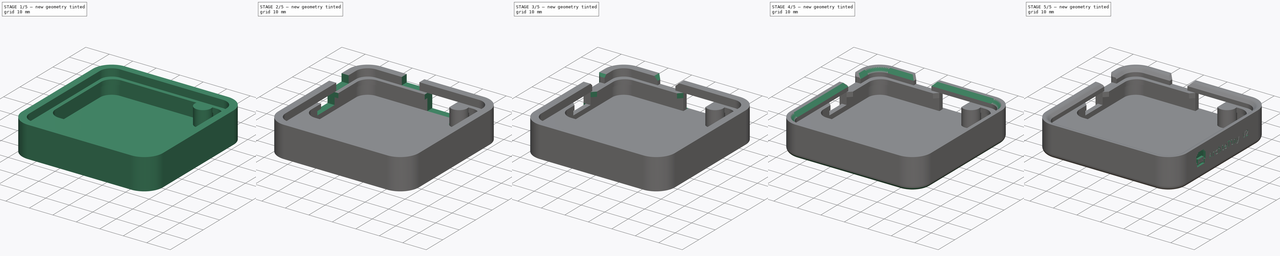
[diagram: build sequence overview — one tinted view per stage of 5, left to right]
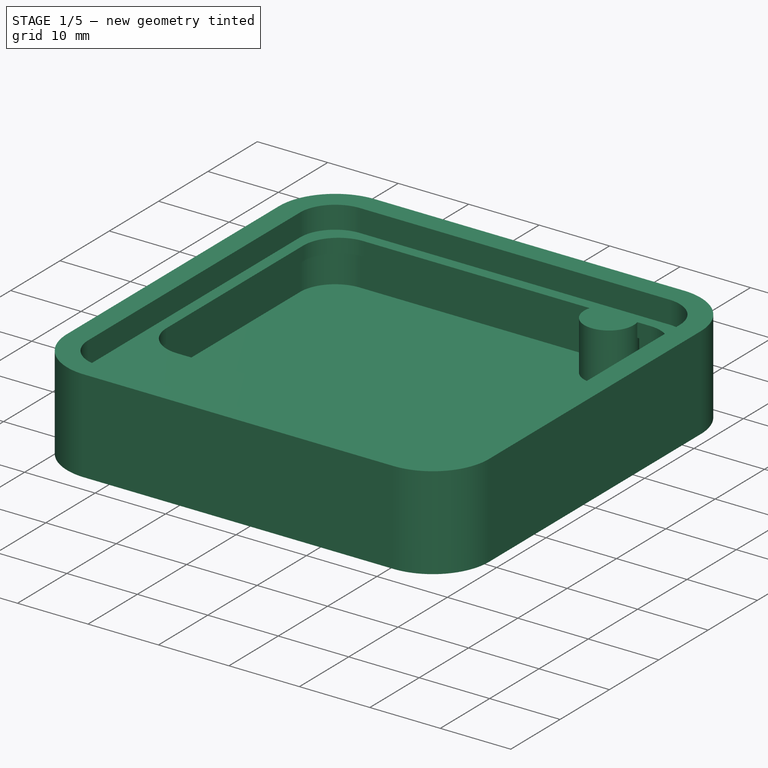
[diagram: stage 1 of 5 — iso view after this stage's code; geometry added in this stage tinted green]
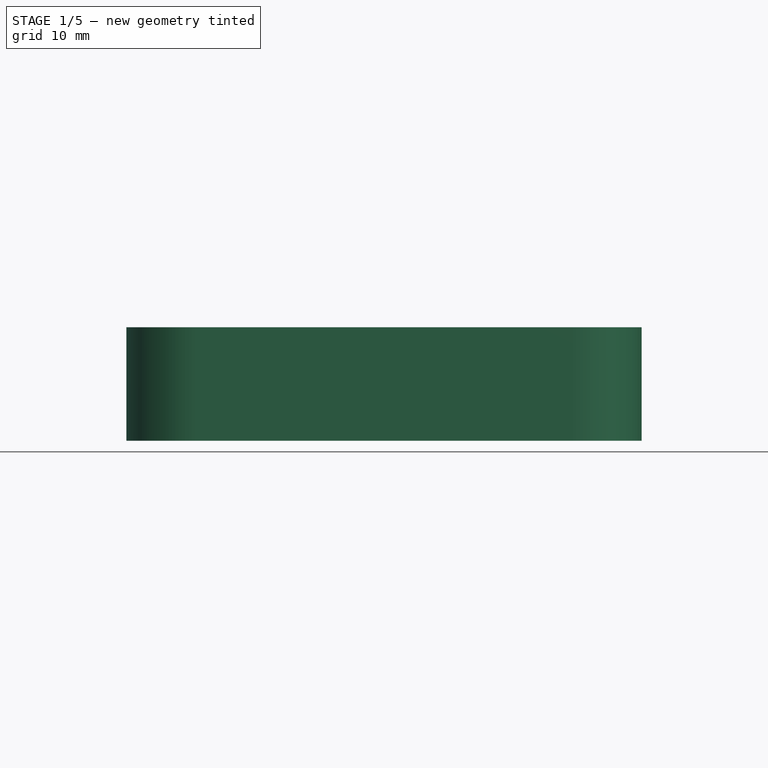
[diagram: stage 1 of 5 — front view after this stage's code; geometry added in this stage tinted green]
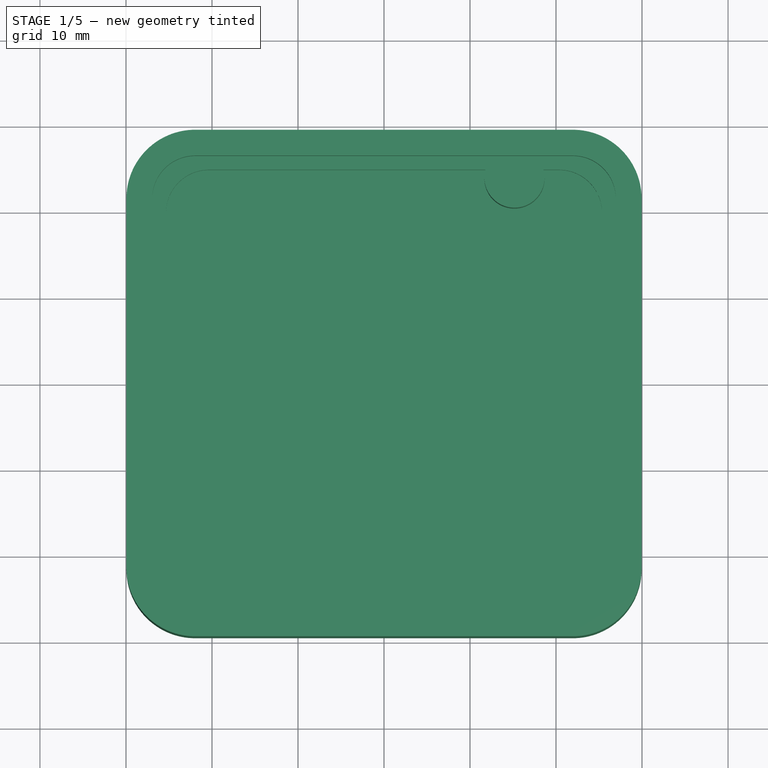
[diagram: stage 1 of 5 — top view after this stage's code; geometry added in this stage tinted green]
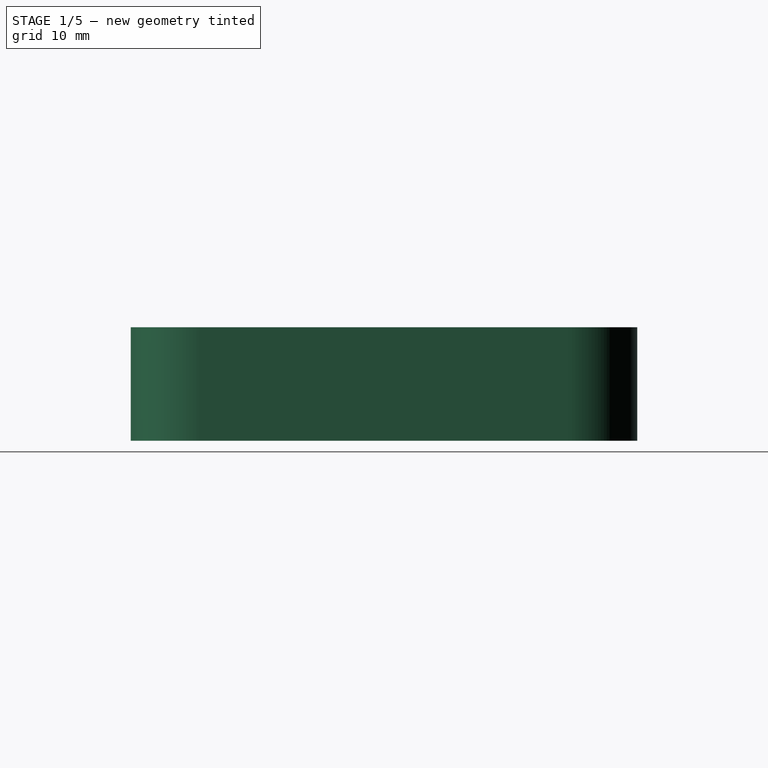
[diagram: stage 1 of 5 — right view after this stage's code; geometry added in this stage tinted green]
FCSTD DOCUMENT  (FreeCAD 0.20R29410 (Git))
Label: ArchieTiny_Case
License: All rights reserved
LicenseURL: http://en.wikipedia.org/wiki/All_rights_reserved
objects: Sketcher::SketchObject×12, PartDesign::Pocket×11, PartDesign::Chamfer×6, PartDesign::Fillet×6, PartDesign::Pad×2, Spreadsheet::Sheet×1, Part::Part2DObjectPython×1, PartDesign::Body×1
note: 64 computed .brp shape members not serialized (recipe doc carries the construction recipe); baked Part::Feature solids carry a one-line shape summary decoded from their .brp

FEATURE [Sketcher::SketchObject] Sketch  label="pcb_shape"
  FullyConstrained = true
  MapMode = 5
  Support = -> [XY_Plane]
  expr: .AttachmentOffset.Base.y = 0
  expr: .AttachmentOffset.Base.z = 0
  expr: Constraints[15] = Spreadsheet.board_straight_width
  expr: Constraints[16] = Spreadsheet.board_straight_height
  expr: Constraints[17] = Spreadsheet.board_corner_radius
  sketch-geometry (8):
    g0: LineSegment StartX=-21.95 StartY=26.45 StartZ=0 EndX=21.95 EndY=26.45 EndZ=0
    g1: LineSegment StartX=26.95 StartY=21.45 StartZ=0 EndX=26.95 EndY=-21.45 EndZ=0
    g2: LineSegment StartX=21.95 StartY=-26.45 StartZ=0 EndX=-21.95 EndY=-26.45 EndZ=0
    g3: LineSegment StartX=-26.95 StartY=-21.45 StartZ=0 EndX=-26.95 EndY=21.45 EndZ=0
    g4: ArcOfCircle CenterX=-21.95 CenterY=21.45 CenterZ=0 NormalX=0 NormalY=0 NormalZ=1 AngleXU=0 Radius=5 StartAngle=1.5708 EndAngle=3.14159
    g5: ArcOfCircle CenterX=21.95 CenterY=21.45 CenterZ=0 NormalX=0 NormalY=0 NormalZ=1 AngleXU=0 Radius=5 StartAngle=-5.4206e-12 EndAngle=1.5708
    g6: ArcOfCircle CenterX=21.95 CenterY=-21.45 CenterZ=0 NormalX=0 NormalY=0 NormalZ=1 AngleXU=0 Radius=5 StartAngle=4.71239 EndAngle=6.28319
    g7: ArcOfCircle CenterX=-21.95 CenterY=-21.45 CenterZ=0 NormalX=0 NormalY=0 NormalZ=1 AngleXU=0 Radius=5 StartAngle=3.14159 EndAngle=4.71239
  constraints (19):
    c: Horizontal(g0)
    c: Horizontal(g2)
    c: Vertical(g1)
    c: Vertical(g3)
    c: Tangent(g3,g4) = 1.5708
    c: Tangent(g0,g4) = 1.5708
    c: Tangent(g0,g5) = 1.5708
    c: Tangent(g1,g5) = 1.5708
    c: Tangent(g1,g6) = 1.5708
    c: Tangent(g2,g6) = 1.5708
    c: Tangent(g3,g7) = 1.5708
    c: Tangent(g2,g7) = 1.5708
    c: Equal(g4,g5)
    c: Equal(g5,g6)
    c: Equal(g6,g7)
    c: DistanceX(g0,g0) = 43.9
    c: DistanceY(g1,g1) = 42.9
    c: Radius(g5) = 5
    c: Symmetric(g4,g6,g-1)
FEATURE [Sketcher::SketchObject] Sketch001
  FullyConstrained = true
  MapMode = 5
  Support = -> [XY_Plane]
  expr: Constraints[15] = Spreadsheet.board_straight_width
  expr: Constraints[16] = Spreadsheet.board_straight_height
  expr: Constraints[17] = Spreadsheet.case_outer_corner_radius
  sketch-geometry (8):
    g0: LineSegment StartX=-21.95 StartY=29.45 StartZ=0 EndX=21.95 EndY=29.45 EndZ=0
    g1: LineSegment StartX=29.95 StartY=21.45 StartZ=0 EndX=29.95 EndY=-21.45 EndZ=0
    g2: LineSegment StartX=21.95 StartY=-29.45 StartZ=0 EndX=-21.95 EndY=-29.45 EndZ=0
    g3: LineSegment StartX=-29.95 StartY=-21.45 StartZ=0 EndX=-29.95 EndY=21.45 EndZ=0
    g4: ArcOfCircle CenterX=-21.95 CenterY=21.45 CenterZ=0 NormalX=0 NormalY=0 NormalZ=1 AngleXU=0 Radius=8 StartAngle=1.5708 EndAngle=3.14159
    g5: ArcOfCircle CenterX=21.95 CenterY=21.45 CenterZ=0 NormalX=0 NormalY=0 NormalZ=1 AngleXU=0 Radius=8 StartAngle=0 EndAngle=1.5708
    g6: ArcOfCircle CenterX=21.95 CenterY=-21.45 CenterZ=0 NormalX=0 NormalY=0 NormalZ=1 AngleXU=0 Radius=8 StartAngle=4.71239 EndAngle=6.28319
    g7: ArcOfCircle CenterX=-21.95 CenterY=-21.45 CenterZ=0 NormalX=0 NormalY=0 NormalZ=1 AngleXU=0 Radius=8 StartAngle=3.14159 EndAngle=4.71239
  constraints (19):
    c: Horizontal(g0)
    c: Horizontal(g2)
    c: Vertical(g1)
    c: Vertical(g3)
    c: Tangent(g3,g4) = 1.5708
    c: Tangent(g0,g4) = 1.5708
    c: Tangent(g0,g5) = 1.5708
    c: Tangent(g1,g5) = 1.5708
    c: Tangent(g1,g6) = 1.5708
    c: Tangent(g2,g6) = 1.5708
    c: Tangent(g3,g7) = 1.5708
    c: Tangent(g2,g7) = 1.5708
    c: Equal(g4,g5)
    c: Equal(g5,g6)
    c: Equal(g6,g7)
    c: DistanceX(g0,g0) = 43.9
    c: DistanceY(g1,g1) = 42.9
    c: Radius(g5) = 8
    c: Symmetric(g4,g6,g-1)
FEATURE [PartDesign::Pad] Pad
  Direction = (0,0,1)
  Length = 13.2
  Length2 = 10
  Profile = -> Sketch001
  ReferenceAxis = -> Sketch001 [N_Axis]
  Reversed = true
  Type = 0
  expr: Length = Spreadsheet.case_depth
FEATURE [PartDesign::Pocket] Pocket  label="Pocket-landing"
  BaseFeature = -> Pad
  Direction = (0,0,-1)
  Length = 3.2
  Length2 = 5
  Profile = -> Sketch
  ReferenceAxis = -> Sketch [N_Axis]
  Type = 0
  expr: Length = Spreadsheet.landing_depth
FEATURE [Spreadsheet::Sheet] Spreadsheet
  cells = A1=board_straight_width_actual; B1(board_straight_width_actual)=43.5; A2=board_straight_height_actual; B2(board_straight_height_actual)=42.5; A3=clearance_padding; B3(clearance_padding)=0.2; A4=board_straight_width; B4(board_straight_width)==B1 + B3 * 2; C4=calculated; A5=board_straight_height; B5(board_straight_height)==B2 + B3 * 2; C5=calculated; A6=board_total_width; B6(board_total_width)==B4 + 2 * B8; C6=calculated; A7=board_total_height; B7(board_total_height)==B5 + 2 * B8; C7=calculated; A8=board_corner_radius; B8(board_corner_radius)=5; A9=case_thickness; B9(case_thickness)=3; A10=case_outer_corner_radius; B10(case_outer_corner_radius)==B8 + B9; C10=calculated; A11=pcb_thickness; B11(pcb_thickness)=1.6; A12=battery_case_thickness; B12(battery_case_thickness)=7; A13=case_depth; B13(case_depth)==B9 + B12 + B16; C13=calculated; A14=case_front_lift; B14(case_front_lift)=1.6; A15=landing_thickness; B15(landing_thickness)=2; A16=landing_depth; B16(landing_depth)==B11 + B14; C16=calculated; A17=landing_lip_width; B17(landing_lip_width)=12; C17=needs to clear battery holder and any through hole components; A18=landing_lip_width_thin; B18(landing_lip_width_thin)=1.6; A19=lug_radius; B19(lug_radius)=3.5; A20=lug_screw_hole_dia; B20(lug_screw_hole_dia)=1; C20=not used; A21=top_lug_xoffset; B21(top_lug_xoffset)=11.78; A22=top_lug_yoffset; B22(top_lug_yoffset)=2.5; A23=i2c_port_xoffset; B23(i2c_port_xoffset)=14; A24=i2c_port_width; B24(i2c_port_width)=13; A25=i2c_port_height; B25(i2c_port_height)=9; A26=switch_width; B26(switch_width)=7.5; A27=pwr_switch_offset; B27(pwr_switch_offset)=16; A28=usb_switch_offset; B28(usb_switch_offset)=9.5; A29=usb_port_offset; B29(usb_port_offset)=18; A30=usb_port_width; B30(usb_port_width)=10.5; A31=usb_port_height; B31(usb_port_height)=3; A32=rtc_battery_dia; B32(rtc_battery_dia)=11; A33=rtc_battery_yoffset; B33(rtc_battery_yoffset)=7.5; A34=rtc_battery_xoffset; B34(rtc_battery_xoffset)=11
FEATURE [Sketcher::SketchObject] Sketch002  label="internal"
  AttachmentOffset = pos=(0,0,-10.2) rot=(0,0,1;0rad)
  FullyConstrained = true
  MapMode = 5
  Placement = pos=(0,0,-10.2) rot=(0,0,1;0rad)
  Support = -> [XY_Plane]
  expr: .AttachmentOffset.Base.z = -Spreadsheet.case_depth + Spreadsheet.case_thickness
  expr: Constraints[15] = Spreadsheet.board_straight_width
  expr: Constraints[16] = Spreadsheet.board_straight_height
  expr: Constraints[17] = Spreadsheet.board_corner_radius
  sketch-geometry (8):
    g0: LineSegment StartX=-21.95 StartY=26.45 StartZ=0 EndX=21.95 EndY=26.45 EndZ=0
    g1: LineSegment StartX=26.95 StartY=21.45 StartZ=0 EndX=26.95 EndY=-21.45 EndZ=0
    g2: LineSegment StartX=21.95 StartY=-26.45 StartZ=0 EndX=-21.95 EndY=-26.45 EndZ=0
    g3: LineSegment StartX=-26.95 StartY=-21.45 StartZ=0 EndX=-26.95 EndY=21.45 EndZ=0
    g4: ArcOfCircle CenterX=-21.95 CenterY=21.45 CenterZ=0 NormalX=0 NormalY=0 NormalZ=1 AngleXU=0 Radius=5 StartAngle=1.5708 EndAngle=3.14159
    g5: ArcOfCircle CenterX=21.95 CenterY=21.45 CenterZ=0 NormalX=0 NormalY=0 NormalZ=1 AngleXU=0 Radius=5 StartAngle=-5.4206e-12 EndAngle=1.5708
    g6: ArcOfCircle CenterX=21.95 CenterY=-21.45 CenterZ=0 NormalX=0 NormalY=0 NormalZ=1 AngleXU=0 Radius=5 StartAngle=4.71239 EndAngle=6.28319
    g7: ArcOfCircle CenterX=-21.95 CenterY=-21.45 CenterZ=0 NormalX=0 NormalY=0 NormalZ=1 AngleXU=0 Radius=5 StartAngle=3.14159 EndAngle=4.71239
  constraints (19):
    c: Horizontal(g0)
    c: Horizontal(g2)
    c: Vertical(g1)
    c: Vertical(g3)
    c: Tangent(g3,g4) = 1.5708
    c: Tangent(g0,g4) = 1.5708
    c: Tangent(g0,g5) = 1.5708
    c: Tangent(g1,g5) = 1.5708
    c: Tangent(g1,g6) = 1.5708
    c: Tangent(g2,g6) = 1.5708
    c: Tangent(g3,g7) = 1.5708
    c: Tangent(g2,g7) = 1.5708
    c: Equal(g4,g5)
    c: Equal(g5,g6)
    c: Equal(g6,g7)
    c: DistanceX(g0,g0) = 43.9
    c: DistanceY(g1,g1) = 42.9
    c: Radius(g5) = 5
    c: Symmetric(g4,g6,g-1)
FEATURE [PartDesign::Pocket] Pocket001  label="Pocket-internal"
  BaseFeature = -> Pocket
  Direction = (0,0,-1)
  Length = 5
  Length2 = 5
  Profile = -> Sketch002
  ReferenceAxis = -> Sketch002 [N_Axis]
  Reversed = true
  Type = 0
  expr: Length = Spreadsheet.battery_case_thickness - Spreadsheet.landing_thickness
FEATURE [Sketcher::SketchObject] Sketch003
  AttachmentOffset = pos=(0,6,-10.2) rot=(0,0,1;0rad)
  FullyConstrained = true
  MapMode = 5
  Placement = pos=(0,6,-10.2) rot=(0,0,1;0rad)
  Support = -> [XY_Plane]
  expr: .AttachmentOffset.Base.x = 0
  expr: .AttachmentOffset.Base.y = Spreadsheet.landing_lip_width / 2
  expr: .AttachmentOffset.Base.z = -Spreadsheet.case_depth + Spreadsheet.case_thickness
  expr: Constraints[15] = Spreadsheet.board_straight_width - Spreadsheet.landing_lip_width_thin * 2
  expr: Constraints[16] = Spreadsheet.board_straight_height - Spreadsheet.landing_lip_width - Spreadsheet.landing_lip_width_thin * 2
  expr: Constraints[17] = Spreadsheet.board_corner_radius
  sketch-geometry (8):
    g0: LineSegment StartX=-20.35 StartY=18.85 StartZ=0 EndX=20.35 EndY=18.85 EndZ=0
    g1: LineSegment StartX=25.35 StartY=13.85 StartZ=0 EndX=25.35 EndY=-13.85 EndZ=0
    g2: LineSegment StartX=20.35 StartY=-18.85 StartZ=0 EndX=-20.35 EndY=-18.85 EndZ=0
    g3: LineSegment StartX=-25.35 StartY=-13.85 StartZ=0 EndX=-25.35 EndY=13.85 EndZ=0
    g4: ArcOfCircle CenterX=-20.35 CenterY=13.85 CenterZ=0 NormalX=0 NormalY=0 NormalZ=1 AngleXU=0 Radius=5 StartAngle=1.5708 EndAngle=3.14159
    g5: ArcOfCircle CenterX=20.35 CenterY=13.85 CenterZ=0 NormalX=0 NormalY=0 NormalZ=1 AngleXU=0 Radius=5 StartAngle=0 EndAngle=1.5708
    g6: ArcOfCircle CenterX=20.35 CenterY=-13.85 CenterZ=0 NormalX=0 NormalY=0 NormalZ=1 AngleXU=0 Radius=5 StartAngle=4.71239 EndAngle=6.28319
    g7: ArcOfCircle CenterX=-20.35 CenterY=-13.85 CenterZ=0 NormalX=0 NormalY=0 NormalZ=1 AngleXU=0 Radius=5 StartAngle=3.14159 EndAngle=4.71239
  constraints (19):
    c: Horizontal(g0)
    c: Horizontal(g2)
    c: Vertical(g1)
    c: Vertical(g3)
    c: Tangent(g3,g4) = 1.5708
    c: Tangent(g0,g4) = 1.5708
    c: Tangent(g0,g5) = 1.5708
    c: Tangent(g1,g5) = 1.5708
    c: Tangent(g1,g6) = 1.5708
    c: Tangent(g2,g6) = 1.5708
    c: Tangent(g3,g7) = 1.5708
    c: Tangent(g2,g7) = 1.5708
    c: Equal(g4,g5)
    c: Equal(g5,g6)
    c: Equal(g6,g7)
    c: DistanceX(g0,g0) = 40.7
    c: DistanceY(g1,g1) = 27.7
    c: Radius(g5) = 5
    c: Symmetric(g4,g6,g-1)
FEATURE [PartDesign::Pocket] Pocket002  label="Pocket-landing-cutout"
  BaseFeature = -> Pocket001
  Direction = (0,0,-1)
  Length = 5
  Length2 = 5
  Profile = -> Sketch003
  ReferenceAxis = -> Sketch003 [N_Axis]
  Reversed = true
  Type = 1
FEATURE [Sketcher::SketchObject] Sketch004
  AttachmentOffset = pos=(0,0,-10.2) rot=(0,0,1;0rad)
  FullyConstrained = true
  MapMode = 5
  Placement = pos=(0,0,-10.2) rot=(0,0,1;0rad)
  Support = -> [XY_Plane]
  expr: .AttachmentOffset.Base.z = -Spreadsheet.case_depth + Spreadsheet.case_thickness
  expr: Constraints[0] = Spreadsheet.board_total_width / 2 - Spreadsheet.lug_radius
  expr: Constraints[1] = Spreadsheet.board_total_height / 2 - Spreadsheet.lug_radius
  expr: Constraints[2] = Spreadsheet.lug_radius
  expr: Constraints[3] = Spreadsheet.lug_radius
  expr: Constraints[4] = Spreadsheet.board_total_width / 2 - Spreadsheet.lug_radius
  expr: Constraints[5] = Spreadsheet.board_total_height / 2 - Spreadsheet.lug_radius
  expr: Constraints[6] = Spreadsheet.lug_radius
  expr: Constraints[7] = Spreadsheet.board_total_width / 2 - Spreadsheet.top_lug_xoffset
  expr: Constraints[8] = Spreadsheet.board_total_height / 2 - Spreadsheet.top_lug_yoffset
  sketch-geometry (3):
    g0: Circle CenterX=23.45 CenterY=-22.95 CenterZ=0 NormalX=0 NormalY=0 NormalZ=1 AngleXU=0 Radius=3.5
    g1: Circle CenterX=-23.45 CenterY=-22.95 CenterZ=0 NormalX=0 NormalY=0 NormalZ=1 AngleXU=0 Radius=3.5
    g2: Circle CenterX=15.17 CenterY=23.95 CenterZ=0 NormalX=0 NormalY=0 NormalZ=1 AngleXU=0 Radius=3.5
  constraints (9):
    c: DistanceX(g-1,g0) = 23.45
    c: DistanceY(g0,g-1) = 22.95
    c: Radius(g0) = 3.5
    c: Radius(g1) = 3.5
    c: DistanceX(g1,g-1) = 23.45
    c: DistanceY(g1,g-1) = 22.95
    c: Radius(g2) = 3.5
    c: DistanceX(g-1,g2) = 15.17
    c: DistanceY(g-1,g2) = 23.95
FEATURE [PartDesign::Pad] Pad001  label="screwlugs"
  BaseFeature = -> Pocket002
  Direction = (0,0,1)
  Length = 7
  Length2 = 10
  Profile = -> Sketch004
  ReferenceAxis = -> Sketch004 [N_Axis]
  Type = 0
  expr: Length = Spreadsheet.battery_case_thickness
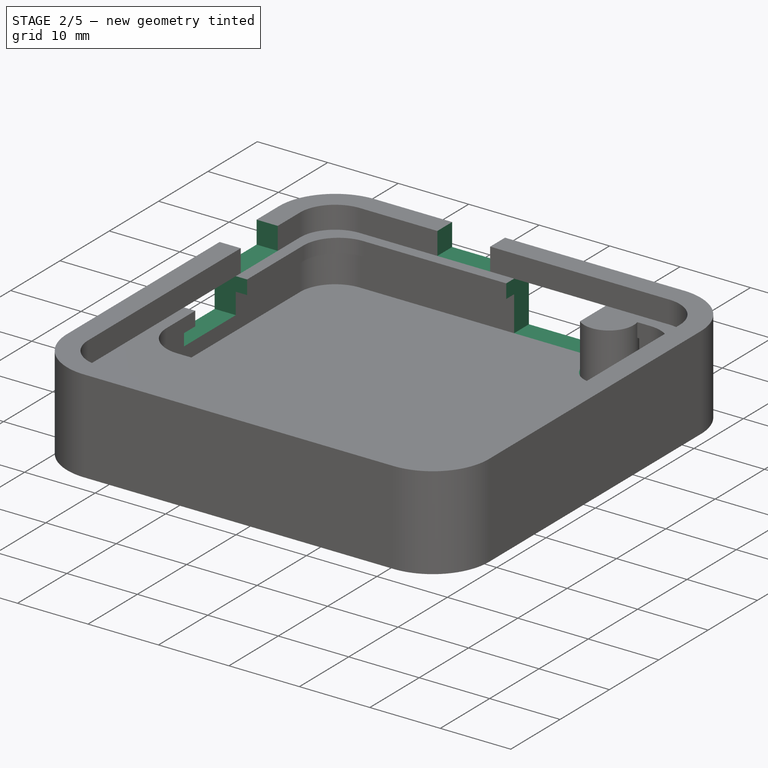
[diagram: stage 2 of 5 — iso view after this stage's code; geometry added in this stage tinted green]
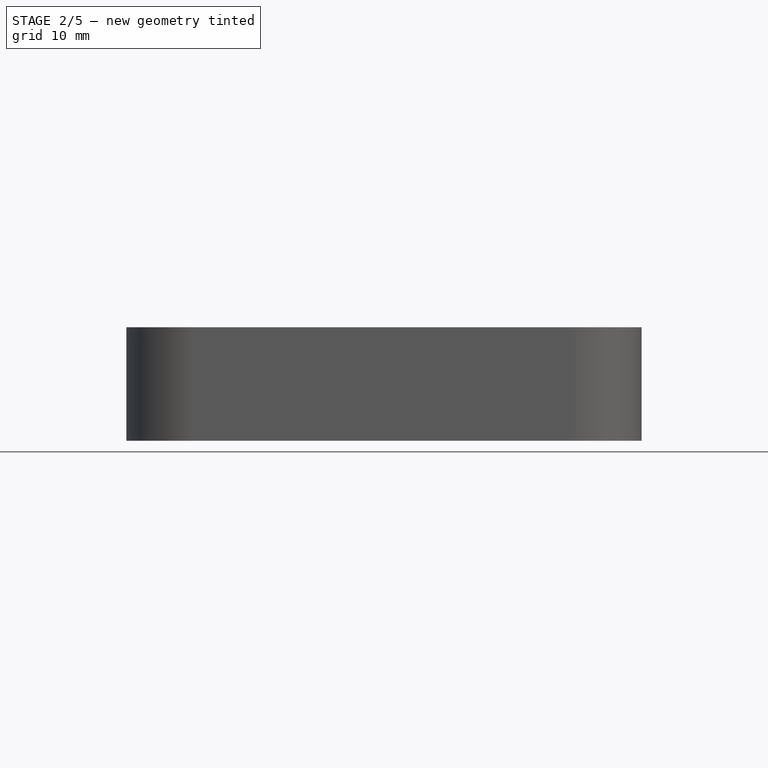
[diagram: stage 2 of 5 — front view after this stage's code; geometry added in this stage tinted green]
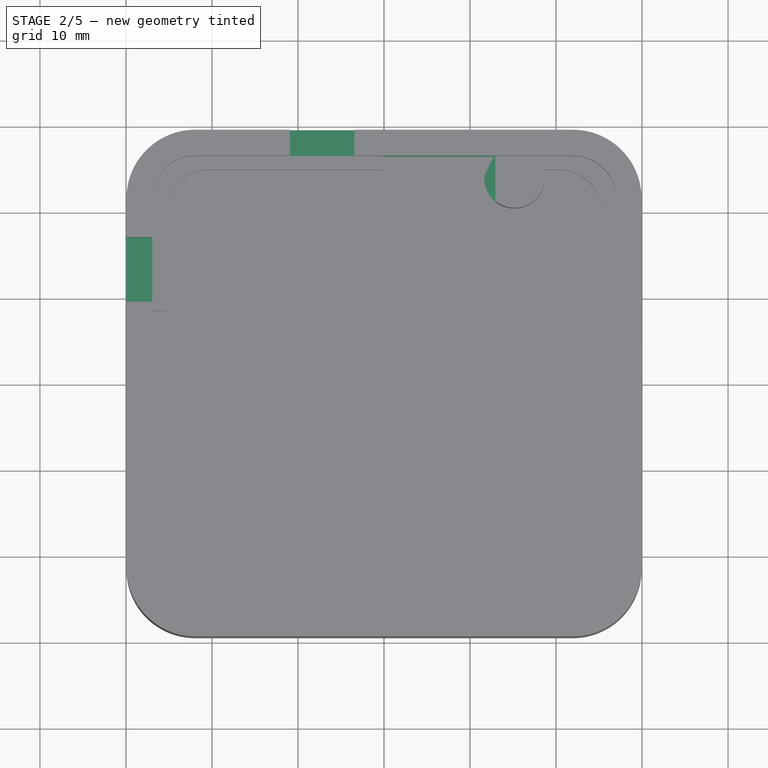
[diagram: stage 2 of 5 — top view after this stage's code; geometry added in this stage tinted green]
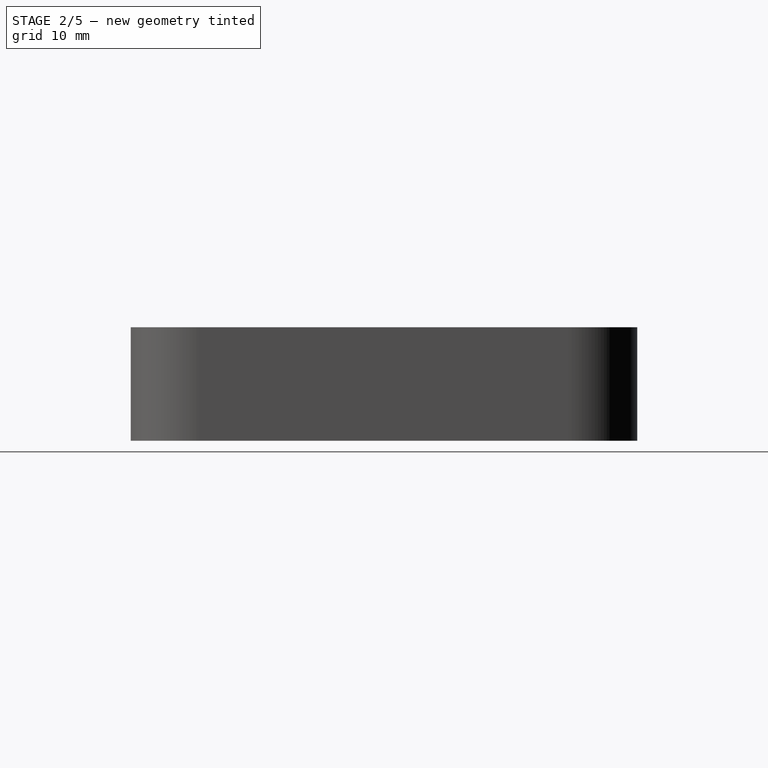
[diagram: stage 2 of 5 — right view after this stage's code; geometry added in this stage tinted green]
FEATURE [Sketcher::SketchObject] Sketch005  label="i2c-slot"
  AttachmentOffset = pos=(0,0,-29.45) rot=(0,0,1;0rad)
  FullyConstrained = true
  MapMode = 5
  Placement = pos=(0,29.45,6.5e-15) rot=(1,0,0;1.5708rad)
  Support = -> [XZ_Plane]
  expr: .AttachmentOffset.Base.z = -Spreadsheet.board_total_height / 2 - Spreadsheet.case_thickness
  expr: Constraints[10] = Spreadsheet.battery_case_thickness
  expr: Constraints[11] = Spreadsheet.landing_depth
  expr: Constraints[8] = Spreadsheet.i2c_port_width
  expr: Constraints[9] = Spreadsheet.board_total_width / 2 - Spreadsheet.i2c_port_xoffset
  sketch-geometry (4):
    g0: LineSegment StartX=-0.05 StartY=-3.2 StartZ=0 EndX=12.95 EndY=-3.2 EndZ=0
    g1: LineSegment StartX=12.95 StartY=-3.2 StartZ=0 EndX=12.95 EndY=-10.2 EndZ=0
    g2: LineSegment StartX=12.95 StartY=-10.2 StartZ=0 EndX=-0.05 EndY=-10.2 EndZ=0
    g3: LineSegment StartX=-0.05 StartY=-10.2 StartZ=0 EndX=-0.05 EndY=-3.2 EndZ=0
  constraints (12):
    c: Coincident(g0,g1)
    c: Coincident(g1,g2)
    c: Coincident(g2,g3)
    c: Coincident(g3,g0)
    c: Horizontal(g0)
    c: Horizontal(g2)
    c: Vertical(g1)
    c: Vertical(g3)
    c: DistanceX(g0,g0) = 13
    c: DistanceX(g-1,g0) = 12.95
    c: DistanceY(g2,g0) = 7
    c: DistanceY(g0,g-1) = 3.2
FEATURE [PartDesign::Pocket] Pocket003  label="i2c-port-pocket"
  BaseFeature = -> Pad001
  Direction = (0,1,2e-16)
  Length = 12
  Length2 = 5
  Profile = -> Sketch005
  ReferenceAxis = -> Sketch005 [N_Axis]
  Reversed = true
  Type = 0
  expr: Length = Spreadsheet.i2c_port_height + Spreadsheet.case_thickness
FEATURE [Sketcher::SketchObject] Sketch006  label="ps-slot"
  AttachmentOffset = pos=(0,0,-29.45) rot=(0,0,1;0rad)
  FullyConstrained = true
  MapMode = 5
  Placement = pos=(0,29.45,6.5e-15) rot=(1,0,0;1.5708rad)
  Support = -> [XZ_Plane]
  expr: .AttachmentOffset.Base.z = -Spreadsheet.board_total_height / 2 - Spreadsheet.case_thickness
  expr: Constraints[10] = Spreadsheet.landing_depth
  expr: Constraints[11] = Spreadsheet.landing_depth + 1
  expr: Constraints[8] = -Spreadsheet.board_total_width / 2 + Spreadsheet.pwr_switch_offset
  expr: Constraints[9] = Spreadsheet.switch_width
  sketch-geometry (4):
    g0: LineSegment StartX=-10.95 StartY=1 StartZ=0 EndX=-3.45 EndY=1 EndZ=0
    g1: LineSegment StartX=-3.45 StartY=1 StartZ=0 EndX=-3.45 EndY=-3.2 EndZ=0
    g2: LineSegment StartX=-3.45 StartY=-3.2 StartZ=0 EndX=-10.95 EndY=-3.2 EndZ=0
    g3: LineSegment StartX=-10.95 StartY=-3.2 StartZ=0 EndX=-10.95 EndY=1 EndZ=0
  constraints (12):
    c: Coincident(g0,g1)
    c: Coincident(g1,g2)
    c: Coincident(g2,g3)
    c: Coincident(g3,g0)
    c: Horizontal(g0)
    c: Horizontal(g2)
    c: Vertical(g1)
    c: Vertical(g3)
    c: DistanceX(g-1,g0) = -10.95
    c: DistanceX(g0,g0) = 7.5
    c: DistanceY(g1,g-1) = 3.2
    c: DistanceY(g2,g0) = 4.2
FEATURE [PartDesign::Pocket] Pocket004  label="pwr-switch-socket"
  BaseFeature = -> Pocket003
  Direction = (0,1,2e-16)
  Length = 4.6
  Length2 = 5
  Profile = -> Sketch006
  ReferenceAxis = -> Sketch006 [N_Axis]
  Reversed = true
  Type = 0
  expr: Length = Spreadsheet.case_thickness + Spreadsheet.landing_lip_width_thin
FEATURE [Sketcher::SketchObject] Sketch007  label="usb-sw-slot"
  AttachmentOffset = pos=(0,0,-29.95) rot=(0,0,1;0rad)
  FullyConstrained = true
  MapMode = 5
  Placement = pos=(-29.95,6.7e-15,-6.7e-15) rot=(0.57735,0.57735,0.57735;2.0944rad)
  Support = -> [YZ_Plane]
  expr: .AttachmentOffset.Base.z = -Spreadsheet.board_total_width / 2 - Spreadsheet.case_thickness
  expr: Constraints[10] = Spreadsheet.switch_width
  expr: Constraints[11] = Spreadsheet.landing_depth + 1
  expr: Constraints[8] = Spreadsheet.landing_depth
  expr: Constraints[9] = Spreadsheet.board_total_height / 2 - Spreadsheet.usb_switch_offset
  sketch-geometry (4):
    g0: LineSegment StartX=16.95 StartY=1 StartZ=0 EndX=9.45 EndY=1 EndZ=0
    g1: LineSegment StartX=9.45 StartY=1 StartZ=0 EndX=9.45 EndY=-3.2 EndZ=0
    g2: LineSegment StartX=9.45 StartY=-3.2 StartZ=0 EndX=16.95 EndY=-3.2 EndZ=0
    g3: LineSegment StartX=16.95 StartY=-3.2 StartZ=0 EndX=16.95 EndY=1 EndZ=0
  constraints (12):
    c: Coincident(g0,g1)
    c: Coincident(g1,g2)
    c: Coincident(g2,g3)
    c: Coincident(g3,g0)
    c: Horizontal(g0)
    c: Horizontal(g2)
    c: Vertical(g1)
    c: Vertical(g3)
    c: DistanceY(g1,g-1) = 3.2
    c: DistanceX(g-1,g0) = 16.95
    c: DistanceX(g0,g0) = 7.5
    c: DistanceY(g1,g0) = 4.2
FEATURE [PartDesign::Pocket] Pocket005  label="usb-switch-socket"
  BaseFeature = -> Pocket004
  Direction = (-1,2e-16,-3e-16)
  Length = 4.6
  Length2 = 5
  Profile = -> Sketch007
  ReferenceAxis = -> Sketch007 [N_Axis]
  Reversed = true
  Type = 0
  expr: Length = Spreadsheet.case_thickness + Spreadsheet.landing_lip_width_thin
FEATURE [Sketcher::SketchObject] Sketch008  label="usb-slot"
  AttachmentOffset = pos=(0,0,-29.95) rot=(0,0,1;0rad)
  FullyConstrained = true
  MapMode = 5
  Placement = pos=(-29.95,6.7e-15,-6.7e-15) rot=(0.57735,0.57735,0.57735;2.0944rad)
  Support = -> [YZ_Plane]
  expr: .AttachmentOffset.Base.z = -Spreadsheet.board_total_width / 2 - Spreadsheet.case_thickness
  expr: Constraints[10] = Spreadsheet.board_total_height / 2 - Spreadsheet.usb_port_offset
  expr: Constraints[11] = Spreadsheet.usb_port_height + Spreadsheet.landing_thickness
  expr: Constraints[8] = Spreadsheet.landing_depth
  expr: Constraints[9] = Spreadsheet.usb_port_width
  sketch-geometry (4):
    g0: LineSegment StartX=-2.05 StartY=-3.2 StartZ=0 EndX=8.45 EndY=-3.2 EndZ=0
    g1: LineSegment StartX=8.45 StartY=-3.2 StartZ=0 EndX=8.45 EndY=-8.2 EndZ=0
    g2: LineSegment StartX=8.45 StartY=-8.2 StartZ=0 EndX=-2.05 EndY=-8.2 EndZ=0
    g3: LineSegment StartX=-2.05 StartY=-8.2 StartZ=0 EndX=-2.05 EndY=-3.2 EndZ=0
  constraints (12):
    c: Coincident(g0,g1)
    c: Coincident(g1,g2)
    c: Coincident(g2,g3)
    c: Coincident(g3,g0)
    c: Horizontal(g0)
    c: Horizontal(g2)
    c: Vertical(g1)
    c: Vertical(g3)
    c: DistanceY(g0,g-1) = 3.2
    c: DistanceX(g0,g0) = 10.5
    c: DistanceX(g-1,g0) = 8.45
    c: DistanceY(g2,g0) = 5
FEATURE [PartDesign::Pocket] Pocket006  label="usb-port-pocket"
  BaseFeature = -> Pocket005
  Direction = (-1,2e-16,-3e-16)
  Length = 4.6
  Length2 = 5
  Profile = -> Sketch008
  ReferenceAxis = -> Sketch008 [N_Axis]
  Reversed = true
  Type = 0
  expr: Length = Spreadsheet.case_thickness + Spreadsheet.landing_lip_width_thin
FEATURE [Sketcher::SketchObject] Sketch009  label="rtc-bt-clearance"
  AttachmentOffset = pos=(0,0,-10.2) rot=(0,0,1;0rad)
  FullyConstrained = true
  MapMode = 5
  Placement = pos=(0,0,-10.2) rot=(0,0,1;0rad)
  Support = -> [XY_Plane]
  expr: .AttachmentOffset.Base.z = -Spreadsheet.case_depth + Spreadsheet.case_thickness
  expr: Constraints[0] = Spreadsheet.rtc_battery_dia / 2
  expr: Constraints[1] = Spreadsheet.board_total_width / 2 - Spreadsheet.rtc_battery_xoffset
  expr: Constraints[2] = Spreadsheet.board_total_height / 2 - Spreadsheet.rtc_battery_yoffset
  sketch-geometry (1):
    g0: Circle CenterX=-15.95 CenterY=18.95 CenterZ=0 NormalX=0 NormalY=0 NormalZ=1 AngleXU=0 Radius=5.5
  constraints (3):
    c: Radius(g0) = 5.5
    c: DistanceX(g0,g-1) = 15.95
    c: DistanceY(g-1,g0) = 18.95
FEATURE [PartDesign::Pocket] Pocket007  label="bt-rtc-clearance-pocket"
  BaseFeature = -> Pocket006
  Direction = (0,0,-1)
  Length = 5
  Length2 = 5
  Profile = -> Sketch009
  ReferenceAxis = -> Sketch009 [N_Axis]
  Reversed = true
  Type = 1
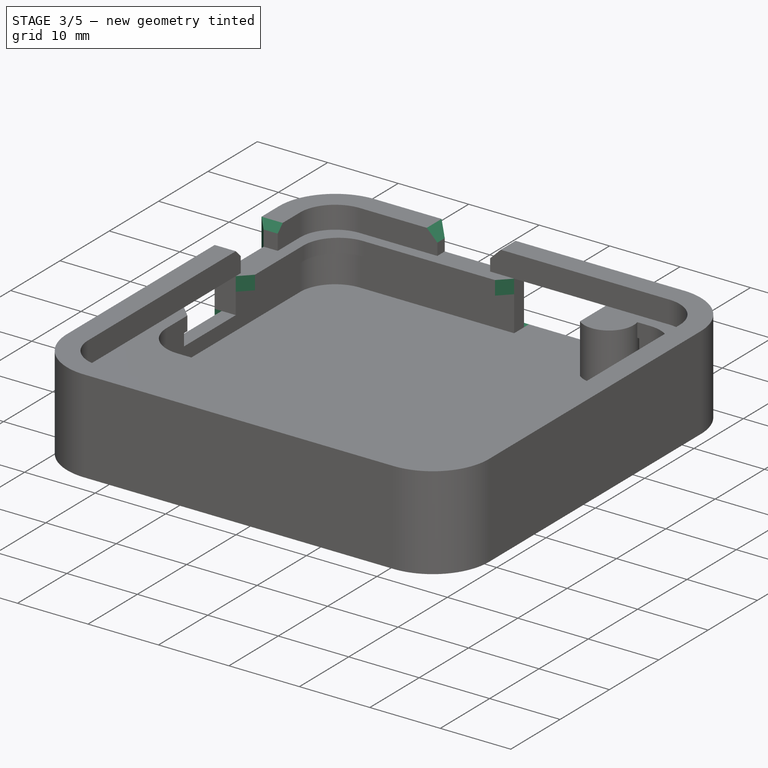
[diagram: stage 3 of 5 — iso view after this stage's code; geometry added in this stage tinted green]
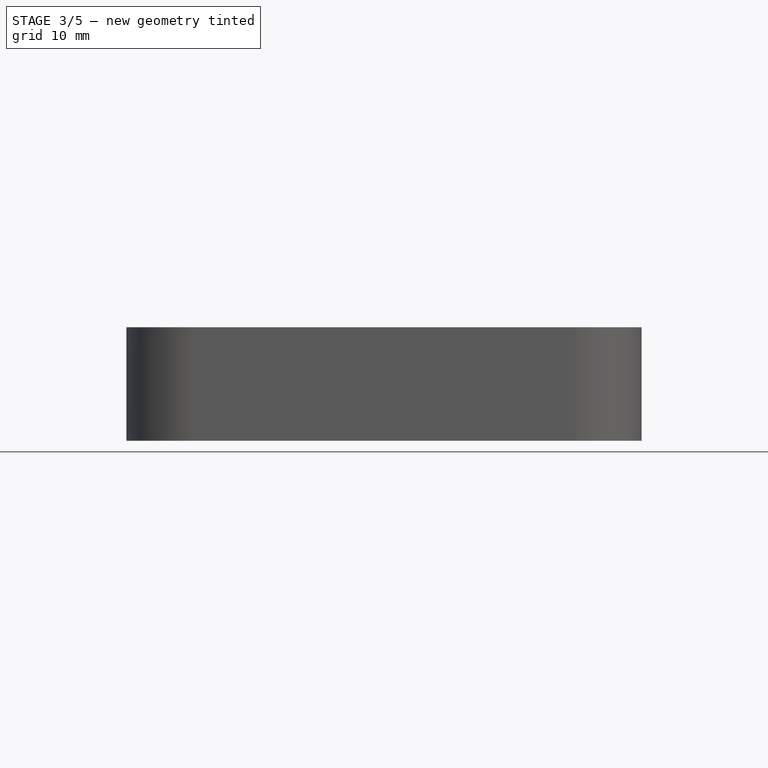
[diagram: stage 3 of 5 — front view after this stage's code; geometry added in this stage tinted green]
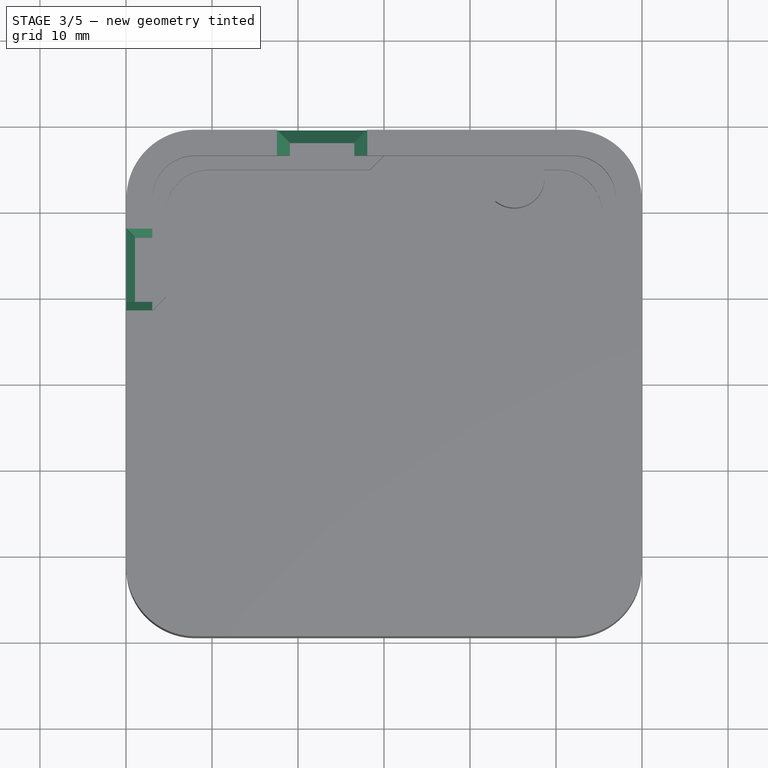
[diagram: stage 3 of 5 — top view after this stage's code; geometry added in this stage tinted green]
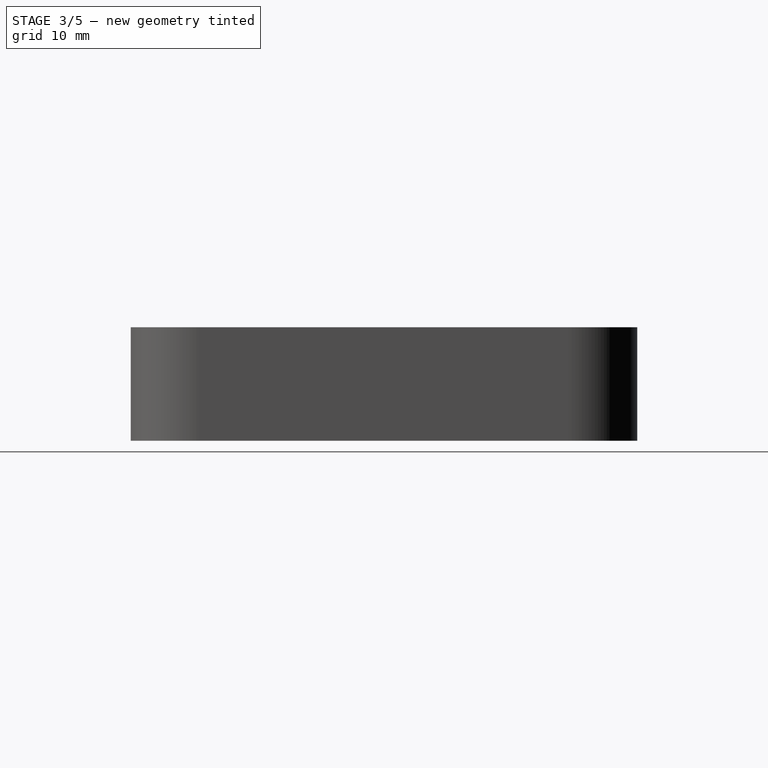
[diagram: stage 3 of 5 — right view after this stage's code; geometry added in this stage tinted green]
FEATURE [PartDesign::Chamfer] Chamfer  label="usb-sw-chamfer"
  Angle = 45
  Base = -> Pocket007 [Edge7,Edge42,Edge13,Edge5]
  BaseFeature = -> Pocket007
  ChamferType = 0
  FlipDirection = false
  Size = 1
  Size2 = 1
  SupportTransform = false
  UseAllEdges = false
FEATURE [PartDesign::Chamfer] Chamfer001  label="usb-port-chamfer"
  Angle = 45
  Base = -> Chamfer [Edge14,Edge12]
  BaseFeature = -> Chamfer
  ChamferType = 0
  FlipDirection = false
  Size = 1
  Size2 = 1
  SupportTransform = false
  UseAllEdges = false
FEATURE [PartDesign::Chamfer] Chamfer002  label="pwr-sw-chamfer"
  Angle = 45
  Base = -> Chamfer001 [Edge50,Edge73,Edge147,Edge148,Edge149]
  BaseFeature = -> Chamfer001
  ChamferType = 0
  FlipDirection = false
  Size = 1.5
  Size2 = 1
  SupportTransform = false
  UseAllEdges = false
  expr: Size = Spreadsheet.case_thickness / 2
FEATURE [PartDesign::Chamfer] Chamfer003  label="i2c-port-chamfer"
  Angle = 45
  Base = -> Chamfer002 [Edge26,Edge24,Edge27]
  BaseFeature = -> Chamfer002
  ChamferType = 0
  FlipDirection = false
  Size = 1
  Size2 = 1
  SupportTransform = false
  UseAllEdges = false
FEATURE [PartDesign::Chamfer] Chamfer004  label="port-clearance-chamfer"
  Angle = 45
  Base = -> Chamfer003 [Edge202,Edge192,Edge67]
  BaseFeature = -> Chamfer003
  ChamferType = 0
  FlipDirection = false
  Size = 1.6
  Size2 = 1
  SupportTransform = false
  UseAllEdges = false
  expr: Size = Spreadsheet.landing_lip_width_thin
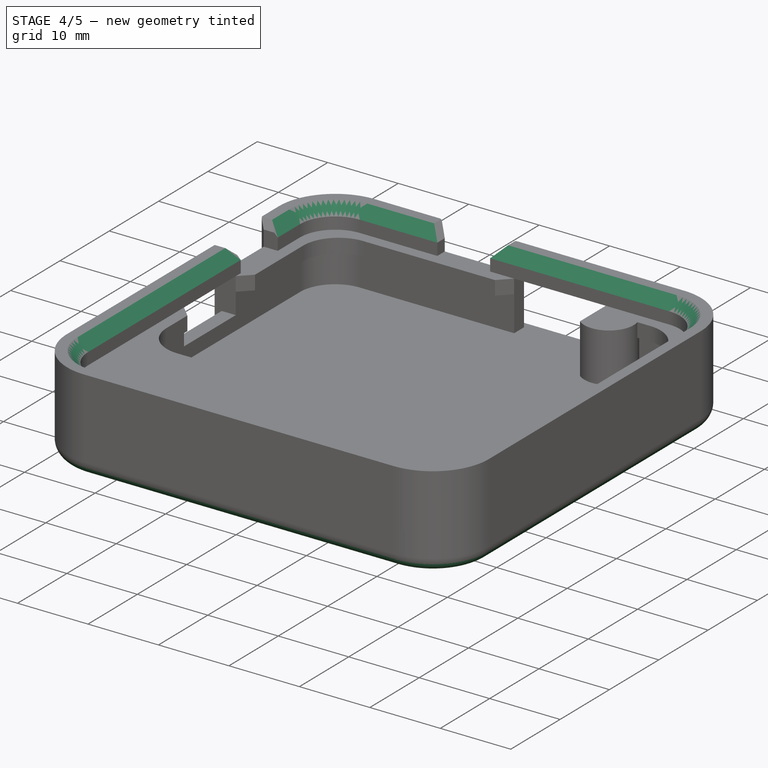
[diagram: stage 4 of 5 — iso view after this stage's code; geometry added in this stage tinted green]
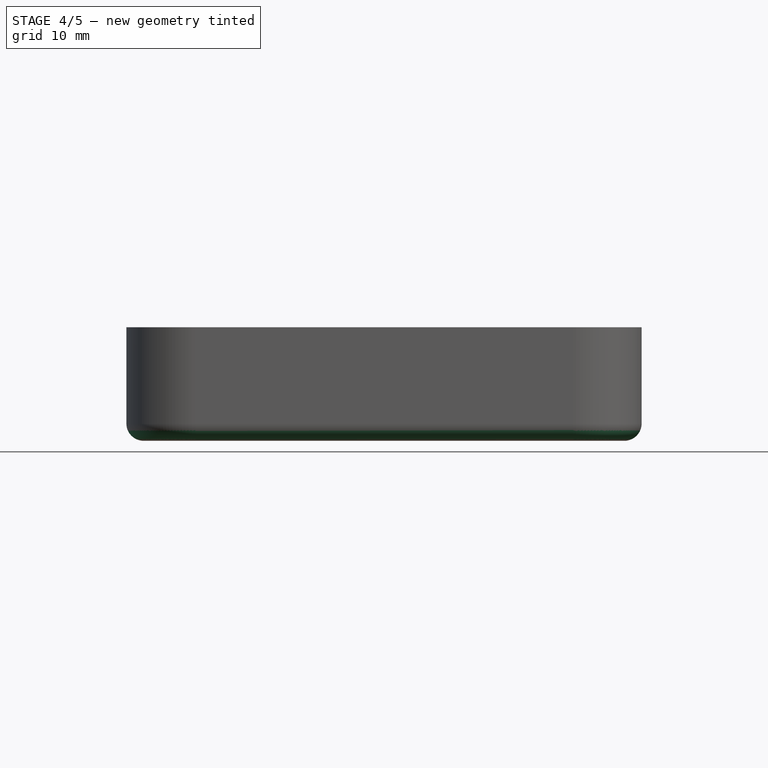
[diagram: stage 4 of 5 — front view after this stage's code; geometry added in this stage tinted green]
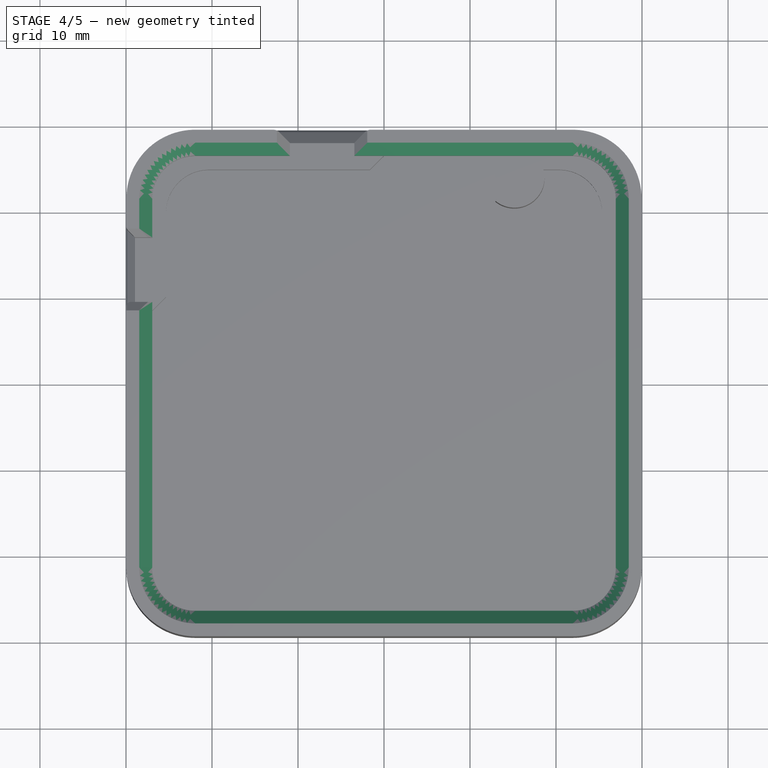
[diagram: stage 4 of 5 — top view after this stage's code; geometry added in this stage tinted green]
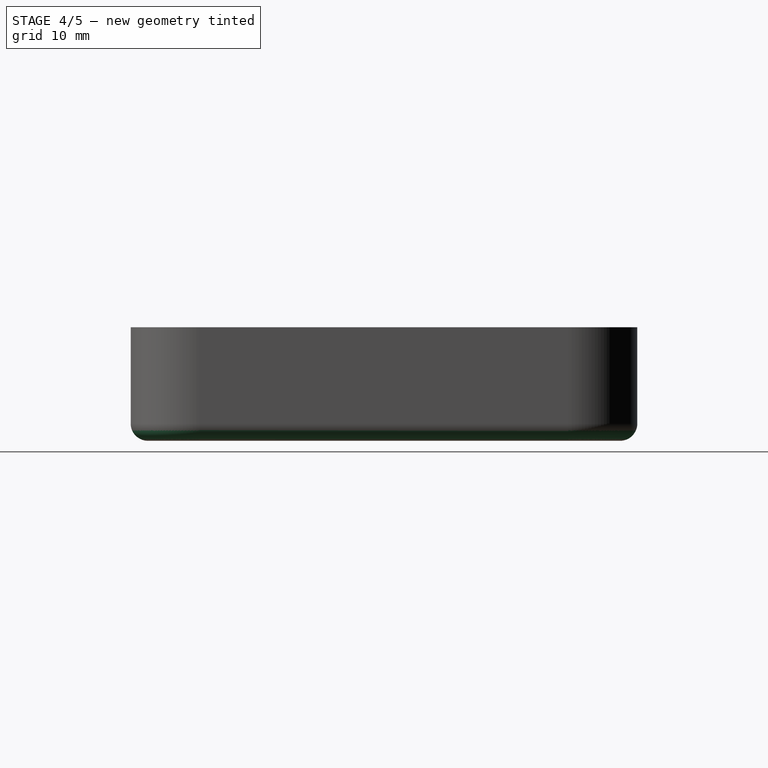
[diagram: stage 4 of 5 — right view after this stage's code; geometry added in this stage tinted green]
FEATURE [PartDesign::Fillet] Fillet  label="bottom-smoothing"
  Base = -> Chamfer004 [Edge82]
  BaseFeature = -> Chamfer004
  Radius = 2
  SupportTransform = false
  UseAllEdges = false
FEATURE [PartDesign::Chamfer] Chamfer005  label="top-lift-slope-chamfer"
  Angle = 45
  Base = -> Fillet [Edge36,Edge24]
  BaseFeature = -> Fillet
  ChamferType = 0
  FlipDirection = false
  Size = 1.5
  Size2 = 1
  SupportTransform = false
  UseAllEdges = false
  expr: Size = Spreadsheet.case_thickness / 2
FEATURE [PartDesign::Fillet] Fillet001  label="usb-sw-fillet"
  Base = -> Chamfer005 [Edge39,Edge41,Edge40]
  BaseFeature = -> Chamfer005
  Radius = 0.5
  SupportTransform = false
  UseAllEdges = false
FEATURE [PartDesign::Fillet] Fillet002  label="pwr-sw-fillet"
  Base = -> Fillet001 [Edge37,Edge39,Edge40]
  BaseFeature = -> Fillet001
  Radius = 1
  SupportTransform = false
  UseAllEdges = false
FEATURE [PartDesign::Fillet] Fillet003  label="usb-port-fillet"
  Base = -> Fillet002 [Edge42,Edge45]
  BaseFeature = -> Fillet002
  Radius = 1
  SupportTransform = false
  UseAllEdges = false
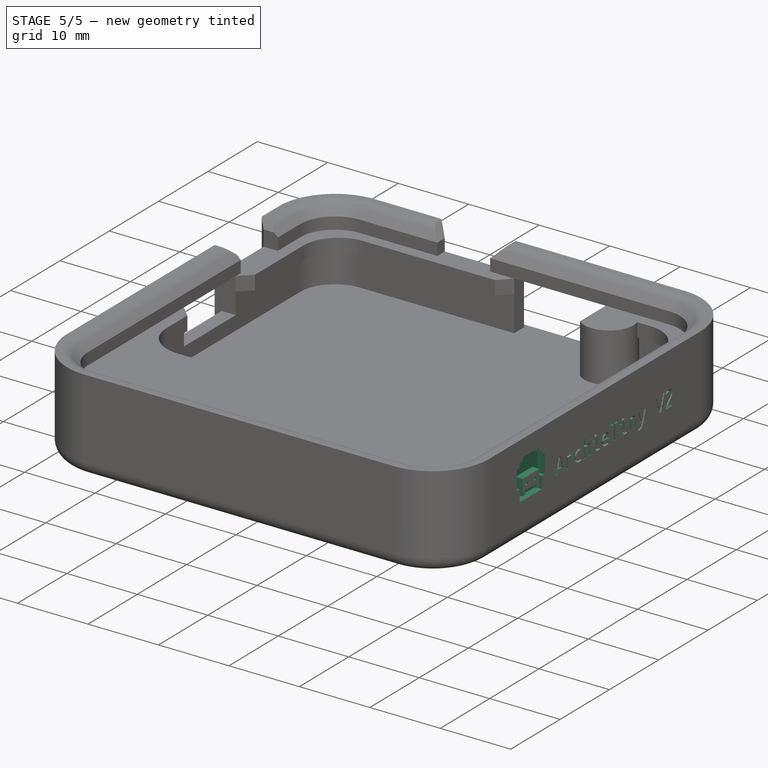
[diagram: stage 5 of 5 — iso view after this stage's code; geometry added in this stage tinted green]
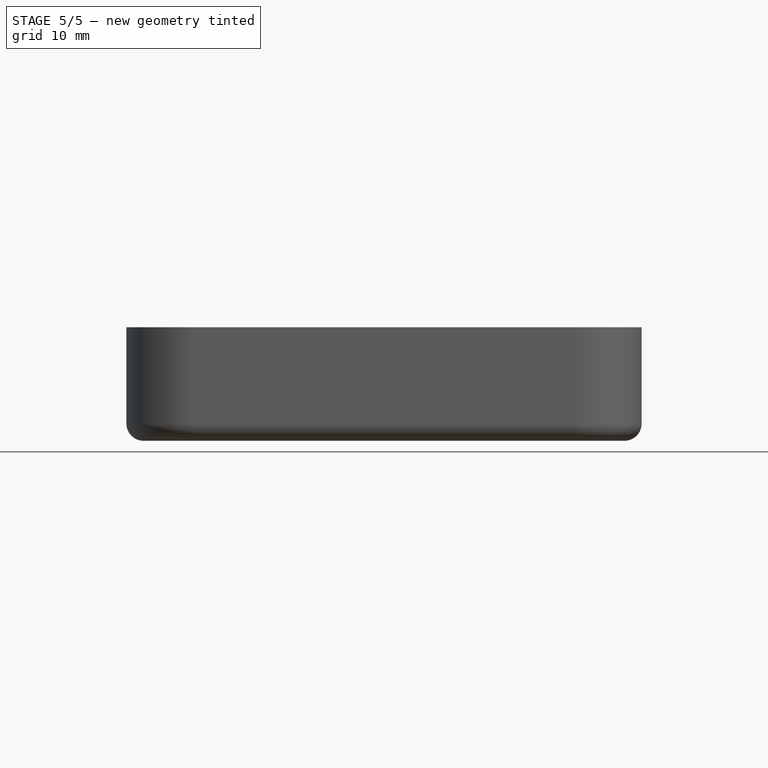
[diagram: stage 5 of 5 — front view after this stage's code; geometry added in this stage tinted green]
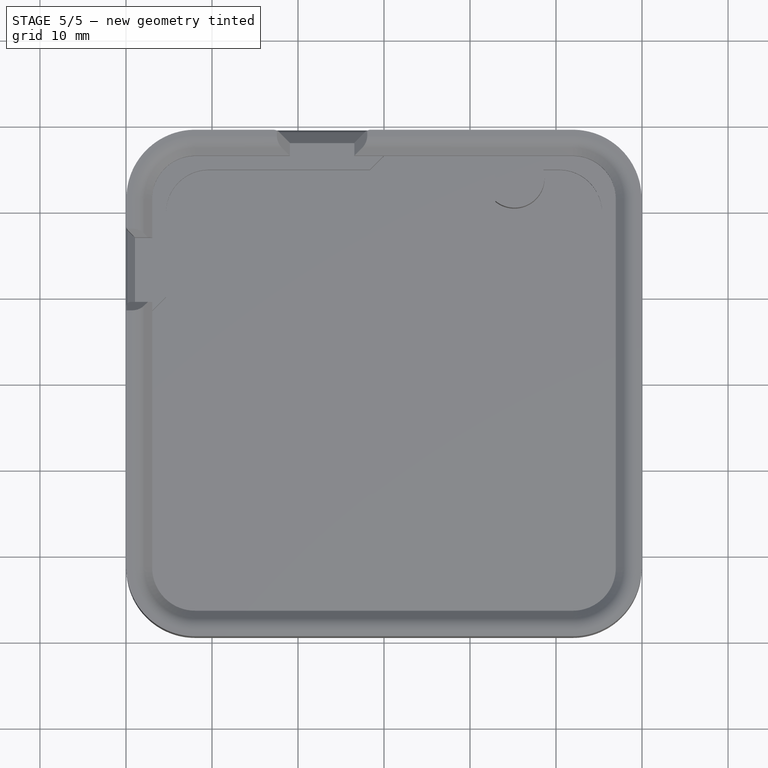
[diagram: stage 5 of 5 — top view after this stage's code; geometry added in this stage tinted green]
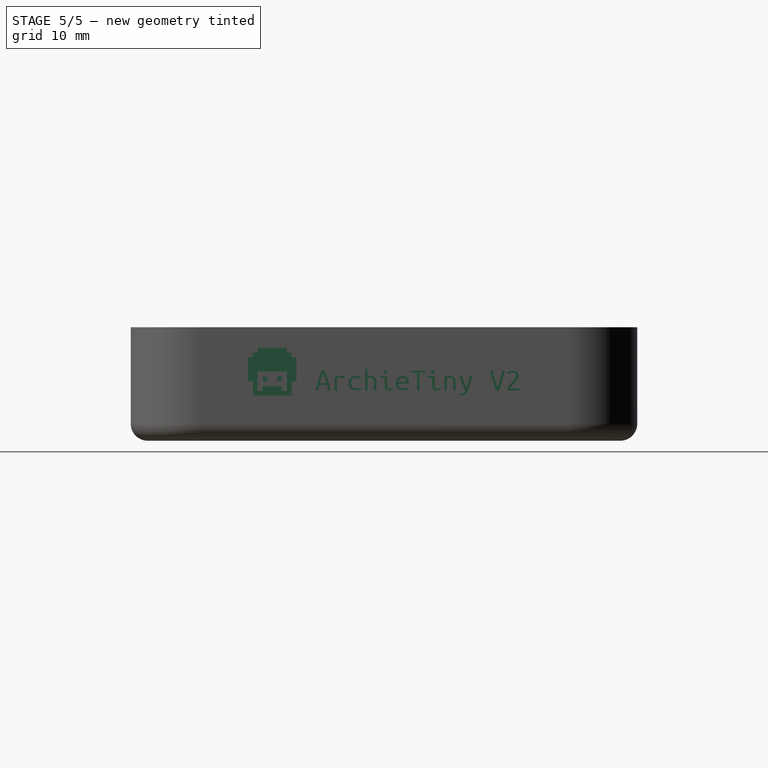
[diagram: stage 5 of 5 — right view after this stage's code; geometry added in this stage tinted green]
FEATURE [PartDesign::Fillet] Fillet004  label="i2c-port-fillet"
  Base = -> Fillet003 [Edge122,Edge124,Edge125,Edge123,Edge121,Edge120]
  BaseFeature = -> Fillet003
  Radius = 0.5
  SupportTransform = false
  UseAllEdges = false
FEATURE [PartDesign::Fillet] Fillet005  label="top-lift-smoothing"
  Base = -> Fillet004 [Edge57,Edge33]
  BaseFeature = -> Fillet004
  Radius = 2
  SupportTransform = false
  UseAllEdges = false
FEATURE [Sketcher::SketchObject] Sketch010  label="Face"
  AttachmentOffset = pos=(0,0,-13.2) rot=(0,0,1;0rad)
  FullyConstrained = true
  MapMode = 5
  Placement = pos=(0,0,-13.2) rot=(0,0,1;0rad)
  Support = -> [XY_Plane]
  expr: .AttachmentOffset.Base.z = -Spreadsheet.case_depth
  sketch-geometry (32):
    g0: LineSegment StartX=7.51 StartY=-8.79 StartZ=0 EndX=-7.51 EndY=-8.79 EndZ=0
    g1: LineSegment StartX=-7.51 StartY=-8.79 StartZ=0 EndX=-7.51 EndY=-3.23 EndZ=0
    g2: LineSegment StartX=-7.51 StartY=-3.23 StartZ=0 EndX=-9.38 EndY=-3.23 EndZ=0
    g3: LineSegment StartX=-9.38 StartY=-3.23 StartZ=0 EndX=-9.38 EndY=6.04 EndZ=0
    g4: LineSegment StartX=-9.38 StartY=6.04 StartZ=0 EndX=-7.51 EndY=6.04 EndZ=0
    g5: LineSegment StartX=-7.51 StartY=6.04 StartZ=0 EndX=-7.51 EndY=7.9 EndZ=0
    g6: LineSegment StartX=-7.51 StartY=7.9 StartZ=0 EndX=-5.64 EndY=7.9 EndZ=0
    g7: LineSegment StartX=-5.64 StartY=7.9 StartZ=0 EndX=-5.64 EndY=9.76 EndZ=0
    g8: LineSegment StartX=-5.64 StartY=9.76 StartZ=0 EndX=5.64 EndY=9.76 EndZ=0
    g9: LineSegment StartX=5.64 StartY=9.76 StartZ=0 EndX=5.64 EndY=7.9 EndZ=0
    g10: LineSegment StartX=5.64 StartY=7.9 StartZ=0 EndX=7.51 EndY=7.9 EndZ=0
    g11: LineSegment StartX=7.51 StartY=7.9 StartZ=0 EndX=7.51 EndY=6.04 EndZ=0
    g12: LineSegment StartX=7.51 StartY=6.04 StartZ=0 EndX=9.38 EndY=6.04 EndZ=0
    g13: LineSegment StartX=9.38 StartY=6.04 StartZ=0 EndX=9.38 EndY=-3.23 EndZ=0
    g14: LineSegment StartX=9.38 StartY=-3.23 StartZ=0 EndX=7.51 EndY=-3.23 EndZ=0
    g15: LineSegment StartX=7.51 StartY=-3.23 StartZ=0 EndX=7.51 EndY=-8.79 EndZ=0
    g16: LineSegment StartX=-3.71 StartY=-1.4 StartZ=0 EndX=-1.97 EndY=-1.4 EndZ=0
    g17: LineSegment StartX=-1.97 StartY=-1.4 StartZ=0 EndX=-1.97 EndY=-3.14 EndZ=0
    g18: LineSegment StartX=-1.97 StartY=-3.14 StartZ=0 EndX=-3.71 EndY=-3.14 EndZ=0
    g19: LineSegment StartX=-3.71 StartY=-3.14 StartZ=0 EndX=-3.71 EndY=-1.4 EndZ=0
    g20: LineSegment StartX=3.71 StartY=-1.37 StartZ=0 EndX=1.97 EndY=-1.37 EndZ=0
    g21: LineSegment StartX=1.97 StartY=-1.37 StartZ=0 EndX=1.97 EndY=-3.11 EndZ=0
    g22: LineSegment StartX=1.97 StartY=-3.11 StartZ=0 EndX=3.71 EndY=-3.11 EndZ=0
    g23: LineSegment StartX=3.71 StartY=-3.11 StartZ=0 EndX=3.71 EndY=-1.37 EndZ=0
    g24: LineSegment StartX=-3.8 StartY=-6.95 StartZ=0 EndX=-5.68 EndY=-6.95 EndZ=0
    g25: LineSegment StartX=-5.68 StartY=-6.95 StartZ=0 EndX=-5.68 EndY=0.54 EndZ=0
    g26: LineSegment StartX=-5.68 StartY=0.54 StartZ=0 EndX=5.68 EndY=0.54 EndZ=0
    g27: LineSegment StartX=5.68 StartY=0.54 StartZ=0 EndX=5.68 EndY=-6.95 EndZ=0
    g28: LineSegment StartX=5.68 StartY=-6.95 StartZ=0 EndX=3.8 EndY=-6.95 EndZ=0
    g29: LineSegment StartX=3.8 StartY=-6.95 StartZ=0 EndX=3.8 EndY=-5.18 EndZ=0
    g30: LineSegment StartX=3.8 StartY=-5.18 StartZ=0 EndX=-3.8 EndY=-5.18 EndZ=0
    g31: LineSegment StartX=-3.8 StartY=-5.18 StartZ=0 EndX=-3.8 EndY=-6.95 EndZ=0
  constraints (96):
    c: Horizontal(g0)
    c: Coincident(g0,g1)
    c: Vertical(g1)
    c: Coincident(g1,g2)
    c: Horizontal(g2)
    c: Coincident(g2,g3)
    c: Vertical(g3)
    c: Coincident(g3,g4)
    c: Horizontal(g4)
    c: Coincident(g4,g5)
    c: Vertical(g5)
    c: Coincident(g5,g6)
    c: Horizontal(g6)
    c: Coincident(g6,g7)
    c: Vertical(g7)
    c: Coincident(g7,g8)
    c: Horizontal(g8)
    c: Coincident(g8,g9)
    c: Vertical(g9)
    c: Coincident(g9,g10)
    c: Horizontal(g10)
    c: Coincident(g10,g11)
    c: Vertical(g11)
    c: Coincident(g11,g12)
    c: Horizontal(g12)
    c: Coincident(g12,g13)
    c: Vertical(g13)
    c: Coincident(g13,g14)
    c: Horizontal(g14)
    c: Coincident(g14,g15)
    c: Coincident(g15,g0)
    c: Vertical(g15)
    c: Equal(g4,g6)
    c: Equal(g6,g10)
    c: Equal(g10,g12)
    c: Equal(g12,g14)
    c: Equal(g14,g2)
    c: Equal(g5,g7)
    c: Equal(g7,g9)
    c: Equal(g9,g11)
    c: Equal(g1,g15)
    c: DistanceY(g1,g-1) = 3.23
    c: DistanceY(g0,g-1) = 8.79
    c: DistanceX(g0,g-1) = 7.51
    c: DistanceY(g-1,g4) = 6.04
    c: DistanceY(g-1,g6) = 7.9
    c: DistanceX(g7,g-1) = 5.64
    c: Coincident(g16,g17)
    c: Coincident(g17,g18)
    c: Coincident(g18,g19)
    c: Coincident(g19,g16)
    c: Horizontal(g16)
    c: Horizontal(g18)
    c: Vertical(g17)
    c: Vertical(g19)
    c: Equal(g18,g19)
    c: DistanceX(g16,g-1) = 1.97
    c: DistanceY(g16,g-1) = 1.4
    c: Coincident(g20,g21)
    c: Coincident(g21,g22)
    c: Coincident(g22,g23)
    c: Coincident(g23,g20)
    c: Horizontal(g20)
    c: Horizontal(g22)
    c: Vertical(g21)
    c: Vertical(g23)
    c: Equal(g22,g23)
    c: DistanceY(g17,g17) = 1.74
    c: Equal(g17,g21)
    c: DistanceX(g-1,g20) = 1.97
    c: DistanceY(g20,g-1) = 1.37
    c: DistanceX(g-1,g14) = 7.51
    c: Horizontal(g24)
    c: Coincident(g24,g25)
    c: Vertical(g25)
    c: Coincident(g25,g26)
    c: Horizontal(g26)
    c: Coincident(g26,g27)
    c: Vertical(g27)
    c: Coincident(g27,g28)
    c: Horizontal(g28)
    c: Coincident(g28,g29)
    c: Vertical(g29)
    c: Coincident(g29,g30)
    c: Horizontal(g30)
    c: Coincident(g30,g31)
    c: Coincident(g31,g24)
    c: Vertical(g31)
    c: DistanceX(g-1,g29) = 3.8
    c: DistanceX(g30,g-1) = 3.8
    c: Equal(g31,g29)
    c: Equal(g24,g28)
    c: DistanceY(g30,g-1) = 5.18
    c: DistanceX(g-1,g27) = 5.68
    c: DistanceY(g27,g-1) = 6.95
    c: DistanceY(g-1,g26) = 0.54
FEATURE [PartDesign::Pocket] Pocket008  label="logo"
  BaseFeature = -> Fillet005
  Direction = (0,0,-1)
  Length = 1
  Length2 = 5
  Profile = -> Sketch010
  ReferenceAxis = -> Sketch010 [N_Axis]
  Reversed = true
  Type = 0
FEATURE [Part::Part2DObjectPython] ShapeString  # Draft 2D object (typed FeaturePython)
  FontFile = <path>
  MakeFace = true
  MapMode = 2
  Placement = pos=(29.95,-8,-7.35) rot=(0.57735,0.57735,0.57735;2.0944rad)
  Size = 1.2
  String = ArchieTiny V2
  Tracking = 0
  expr: .Placement.Base.x = Spreadsheet.board_total_width / 2 + Spreadsheet.case_thickness
  expr: .Placement.Base.y = -8
  expr: .Placement.Base.z = -Spreadsheet.case_depth / 2 - 2.5 / 2 + 0.5
FEATURE [PartDesign::Pocket] Pocket009  label="Name"
  BaseFeature = -> Pocket008
  Direction = (-1,-1e-16,-1e-16)
  Length = 1
  Length2 = 5
  Profile = -> ShapeString
  ReferenceAxis = -> ShapeString [N_Axis]
  Type = 0
FEATURE [Sketcher::SketchObject] Sketch012  label="Face002"
  FullyConstrained = false
  Placement = pos=(29.95,-13,-5.35) rot=(0,1,0;1.5708rad)
  expr: .Placement.Base.x = Spreadsheet.board_total_width / 2 + Spreadsheet.case_thickness
  expr: .Placement.Base.z = -Spreadsheet.case_depth / 2 - 2.5 / 2 + 2.5
  sketch-geometry (32):
    g0: LineSegment StartX=2.60405 StartY=2.25624 StartZ=0 EndX=2.60405 EndY=-2.24976 EndZ=0
    g1: LineSegment StartX=2.60405 StartY=-2.24976 StartZ=0 EndX=0.936048 EndY=-2.24976 EndZ=0
    g2: LineSegment StartX=0.936048 StartY=-2.24976 StartZ=0 EndX=0.936048 EndY=-2.81076 EndZ=0
    g3: LineSegment StartX=0.936048 StartY=-2.81076 StartZ=0 EndX=-1.84495 EndY=-2.81076 EndZ=0
    g4: LineSegment StartX=-1.84495 StartY=-2.81076 StartZ=0 EndX=-1.84495 EndY=-2.24976 EndZ=0
    g5: LineSegment StartX=-1.84495 StartY=-2.24976 StartZ=0 EndX=-2.40295 EndY=-2.24976 EndZ=0
    g6: LineSegment StartX=-2.40295 StartY=-2.24976 StartZ=0 EndX=-2.40295 EndY=-1.68876 EndZ=0
    g7: LineSegment StartX=-2.40295 StartY=-1.68876 StartZ=0 EndX=-2.96095 EndY=-1.68876 EndZ=0
    g8: LineSegment StartX=-2.96095 StartY=-1.68876 StartZ=0 EndX=-2.96095 EndY=1.69524 EndZ=0
    g9: LineSegment StartX=-2.96095 StartY=1.69524 StartZ=0 EndX=-2.40295 EndY=1.69524 EndZ=0
    g10: LineSegment StartX=-2.40295 StartY=1.69524 StartZ=0 EndX=-2.40295 EndY=2.25624 EndZ=0
    g11: LineSegment StartX=-2.40295 StartY=2.25624 StartZ=0 EndX=-1.84495 EndY=2.25624 EndZ=0
    g12: LineSegment StartX=-1.84495 StartY=2.25624 StartZ=0 EndX=-1.84495 EndY=2.81724 EndZ=0
    g13: LineSegment StartX=-1.84495 StartY=2.81724 StartZ=0 EndX=0.936048 EndY=2.81724 EndZ=0
    g14: LineSegment StartX=0.936048 StartY=2.81724 StartZ=0 EndX=0.936048 EndY=2.25624 EndZ=0
    g15: LineSegment StartX=0.936048 StartY=2.25624 StartZ=0 EndX=2.60405 EndY=2.25624 EndZ=0
    g16: LineSegment StartX=0.387048 StartY=-1.10976 StartZ=0 EndX=0.387048 EndY=-0.587762 EndZ=0
    g17: LineSegment StartX=0.387048 StartY=-0.587762 StartZ=0 EndX=0.909048 EndY=-0.587762 EndZ=0
    g18: LineSegment StartX=0.909048 StartY=-0.587762 StartZ=0 EndX=0.909048 EndY=-1.10976 EndZ=0
    g19: LineSegment StartX=0.909048 StartY=-1.10976 StartZ=0 EndX=0.387048 EndY=-1.10976 EndZ=0
    g20: LineSegment StartX=0.378048 StartY=1.11624 StartZ=0 EndX=0.378048 EndY=0.594238 EndZ=0
    g21: LineSegment StartX=0.378048 StartY=0.594238 StartZ=0 EndX=0.900048 EndY=0.594238 EndZ=0
    g22: LineSegment StartX=0.900048 StartY=0.594238 StartZ=0 EndX=0.900048 EndY=1.11624 EndZ=0
    g23: LineSegment StartX=0.900048 StartY=1.11624 StartZ=0 EndX=0.378048 EndY=1.11624 EndZ=0
    g24: LineSegment StartX=2.05205 StartY=-1.13676 StartZ=0 EndX=2.05205 EndY=-1.70076 EndZ=0
    g25: LineSegment StartX=2.05205 StartY=-1.70076 StartZ=0 EndX=-0.194952 EndY=-1.70076 EndZ=0
    g26: LineSegment StartX=-0.194952 StartY=-1.70076 StartZ=0 EndX=-0.194952 EndY=1.70724 EndZ=0
    g27: LineSegment StartX=-0.194952 StartY=1.70724 StartZ=0 EndX=2.05205 EndY=1.70724 EndZ=0
    g28: LineSegment StartX=2.05205 StartY=1.70724 StartZ=0 EndX=2.05205 EndY=1.14324 EndZ=0
    g29: LineSegment StartX=2.05205 StartY=1.14324 StartZ=0 EndX=1.52105 EndY=1.14324 EndZ=0
    g30: LineSegment StartX=1.52105 StartY=1.14324 StartZ=0 EndX=1.52105 EndY=-1.13676 EndZ=0
    g31: LineSegment StartX=1.52105 StartY=-1.13676 StartZ=0 EndX=2.05205 EndY=-1.13676 EndZ=0
  constraints (38):
    c: Coincident(g0,g1)
    c: Coincident(g1,g2)
    c: Coincident(g2,g3)
    c: Coincident(g3,g4)
    c: Coincident(g4,g5)
    c: Horizontal(g5)
    c: Coincident(g5,g6)
    c: Vertical(g6)
    c: Coincident(g6,g7)
    c: Coincident(g7,g8)
    c: Coincident(g8,g9)
    c: Coincident(g9,g10)
    c: Vertical(g10)
    c: Coincident(g10,g11)
    c: Horizontal(g11)
    c: Coincident(g11,g12)
    c: Coincident(g12,g13)
    c: Coincident(g13,g14)
    c: Coincident(g14,g15)
    c: Coincident(g15,g0)
    c: Coincident(g16,g17)
    c: Coincident(g17,g18)
    c: Coincident(g18,g19)
    c: Coincident(g19,g16)
    c: Coincident(g20,g21)
    c: Coincident(g21,g22)
    c: Coincident(g22,g23)
    c: Coincident(g23,g20)
    c: Vertical(g24)
    c: Coincident(g24,g25)
    c: Coincident(g25,g26)
    c: Coincident(g26,g27)
    c: Coincident(g27,g28)
    c: Vertical(g28)
    c: Coincident(g28,g29)
    c: Coincident(g29,g30)
    c: Coincident(g30,g31)
    c: Coincident(g31,g24)
FEATURE [PartDesign::Pocket] Pocket010  label="logo2"
  BaseFeature = -> Pocket009
  Direction = (-1,0,-2e-16)
  Length = 1
  Length2 = 5
  Profile = -> Sketch012
  ReferenceAxis = -> Sketch012 [N_Axis]
  Type = 0
FEATURE [PartDesign::Body] Body  label="Case"
  Group = -> [Sketch,Sketch001,Pad,Pocket,Sketch002,Pocket001,Sketch003,Pocket002,Sketch004,Pad001,Sketch005,Pocket003,Sketch006,Pocket004,Sketch007,Pocket005,Sketch008,Pocket006,Sketch009,Pocket007,Chamfer,Chamfer001,Chamfer002,Chamfer003,Chamfer004,Fillet,Chamfer005,Fillet001,Fillet002,Fillet003,Fillet004,Fillet005,Sketch010,Pocket008,ShapeString,Pocket009,Sketch012,Pocket010]
  Origin = -> Origin
  Tip = -> Pocket010
note: 1 file-system path scrubbed to <path> (originals preserved in the JSON sidecar)
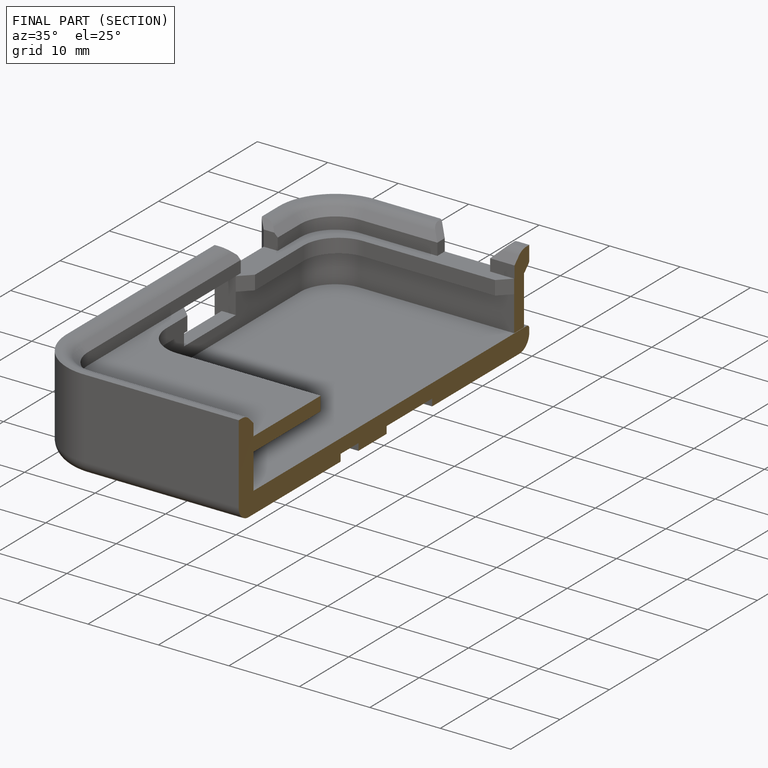
[diagram: finished part — half-section view (interior)]
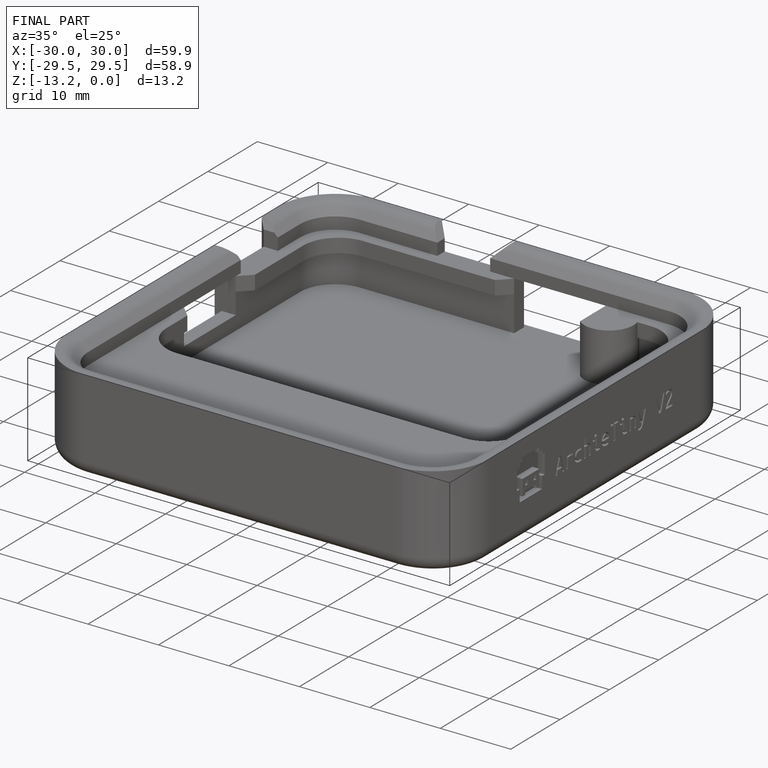
[diagram: finished part — iso view with bounding-box wireframe]
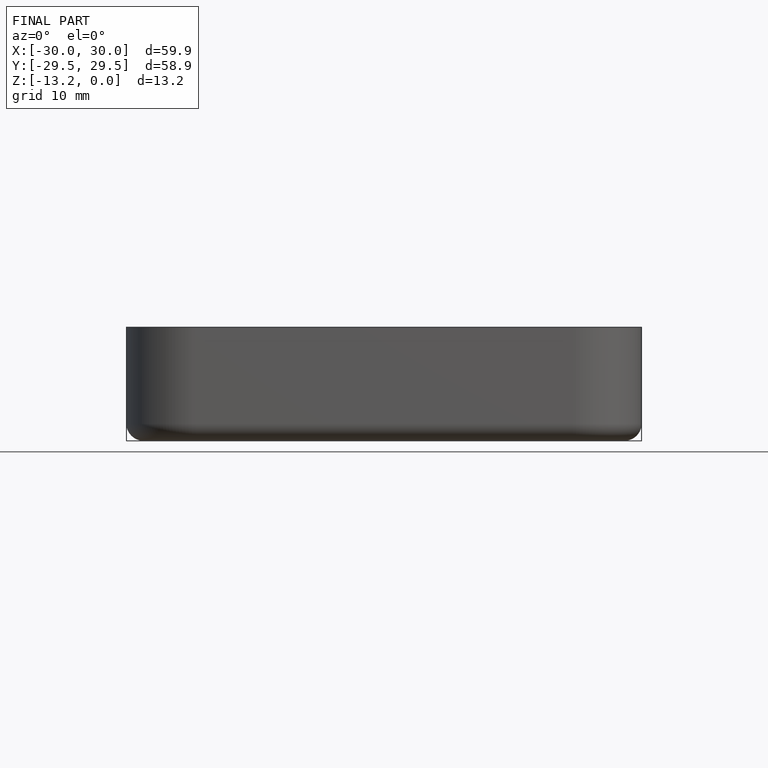
[diagram: finished part — front view with bounding-box wireframe]
